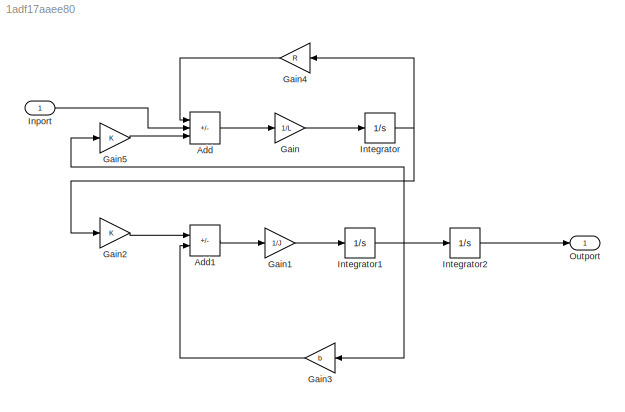
MODEL slx_1adf17aaee80
KIND model
CONFIG AbsTol = auto
CONFIG EnableMultiTasking = off
CONFIG FixedStep = auto
CONFIG MaxStep = auto
CONFIG MinStep = auto
CONFIG RelTol = 1e-3
CONFIG SampleTimeConstraint = Unconstrained
CONFIG SolverName = VariableStepAuto
CONFIG StartTime = 0.0
CONFIG StopTime = 0.2
BLOCK [Sum] Add
  IconShape = rectangular
  Inputs = -+-
  Ports = [3, 1]
BLOCK [Sum] Add1
  IconShape = rectangular
  Inputs = +-
  Ports = [2, 1]
BLOCK [Gain] Gain
  Gain = 1/L
BLOCK [Gain] Gain1
  Gain = 1/J
BLOCK [Gain] Gain2
  Gain = K
BLOCK [Gain] Gain3
  Gain = b
BLOCK [Gain] Gain4
  Gain = R
BLOCK [Gain] Gain5
  Gain = K
BLOCK [Inport] Inport
  OutDataTypeStr = double
  PortDimensions = 1
  SampleTime = 0
  SamplingMode = Sample based
  SignalType = real
BLOCK [Integrator] Integrator
  Ports = [1, 1]
BLOCK [Integrator] Integrator1
  Ports = [1, 1]
BLOCK [Integrator] Integrator2
  Ports = [1, 1]
BLOCK [Outport] Outport
  OutDataTypeStr = double
  PortDimensions = 1
  SampleTime = 0
  SamplingMode = Sample based
  SignalType = real
LINE Add1:1 -> Gain1:1
LINE Add:1 -> Gain:1
LINE Gain1:1 -> Integrator1:1
LINE Gain2:1 -> Add1:1
LINE Gain3:1 -> Add1:2
LINE Gain4:1 -> Add:1
LINE Gain5:1 -> Add:3
LINE Gain:1 -> Integrator:1
LINE Inport:1 -> Add:2
NET Integrator1:1 -> Gain3:1, Gain5:1, Integrator2:1
LINE Integrator2:1 -> Outport:1
NET Integrator:1 -> Gain2:1, Gain4:1
note: NET lines group one-source signal fan-out (src -> all destinations, sorted); 1:1 wires keep LINE
